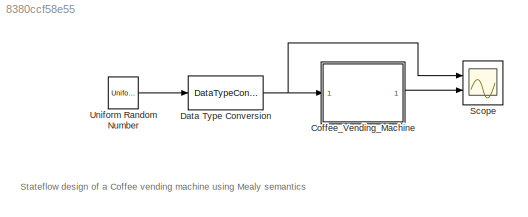
MODEL slx_8380ccf58e55
KIND model
CONFIG AbsTol = auto
CONFIG EnableMultiTasking = off
CONFIG FixedStep = auto
CONFIG MaxStep = auto
CONFIG MinStep = auto
CONFIG RelTol = 1e-3
CONFIG SampleTimeConstraint = Unconstrained
CONFIG SolverName = FixedStepDiscrete
CONFIG StartTime = 0.0
CONFIG StopTime = 200
BLOCK [DataTypeConversion]  Data Type Conversion
  OutDataTypeStr = int8
  RndMeth = Nearest
BLOCK [Scope]  Scope
  Floating = off
  NumInputPorts = 2
  Ports = [2]
  ScopeSpecificationString = Simulink.scopes.TimeScopeBlockCfg('CurrentConfiguration', extmgr.ConfigurationSet(extmgr.Configuration('Core','General UI',true),extmgr.Configuration('Core','Source UI',true),extmgr.Configuration('Sources','WiredSimulink',true,'DataLoggingSaveFormat','StructureWithTime','DataLoggingLimitDataPoints',true,'DataLoggingDecimation','1'),extmgr.Configuration('Visuals','Time Domain',true,'SerializedDispl...<+2501ch>
BLOCK [UniformRandomNumber]  Uniform Random Number
  Maximum = 2
  Minimum = 0
  SampleTime = 10
  Seed = 337
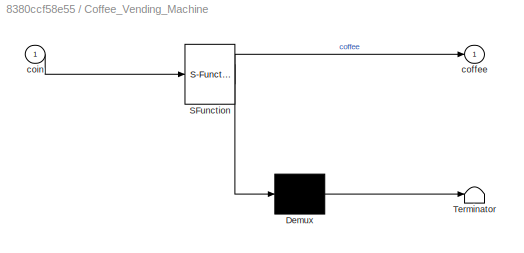
BLOCK [SubSystem] Coffee_Vending_Machine
  ErrorFcn = Stateflow.Translate.translate
  PermitHierarchicalResolution = ExplicitOnly
  Ports = [1, 1]
  RequestExecContextInheritance = off
  SFBlockType = Chart
  TreatAsAtomicUnit = on
BLOCK [Demux] Coffee_Vending_Machine/ Demux 
  Outputs = 1
  Ports = [1, 1]
BLOCK [S-Function] Coffee_Vending_Machine/ SFunction 
  EnableBusSupport = on
  FunctionName = sf_sfun
  PortCounts = [1 2]
  Ports = [1, 2]
  SFcnIsStateOwnerBlock = off
  SFunctionDeploymentMode = off
  Tag = Stateflow S-Function 1
BLOCK [Terminator] Coffee_Vending_Machine/ Terminator 
BLOCK [Outport] Coffee_Vending_Machine/coffee
BLOCK [Inport] Coffee_Vending_Machine/coin
ANNOTATION (root): Stateflow design of a Coffee vending machine using Mealy semantics
NET  Data Type Conversion:1 ->  Scope:1, Coffee_Vending_Machine:1
LINE  Uniform Random Number:1 ->  Data Type Conversion:1
LINE Coffee_Vending_Machine:1 ->  Scope:2
note: NET lines group one-source signal fan-out (src -> all destinations, sorted); 1:1 wires keep LINE
CHART Coffee_Vending_Machine states=3 transitions=7
  STATE_LABEL 'got_coffee'
  STATE_LABEL 'got_milk_sugar'
  STATE_LABEL 'got_coffee_powder'
CHART  states=0 transitions=0
